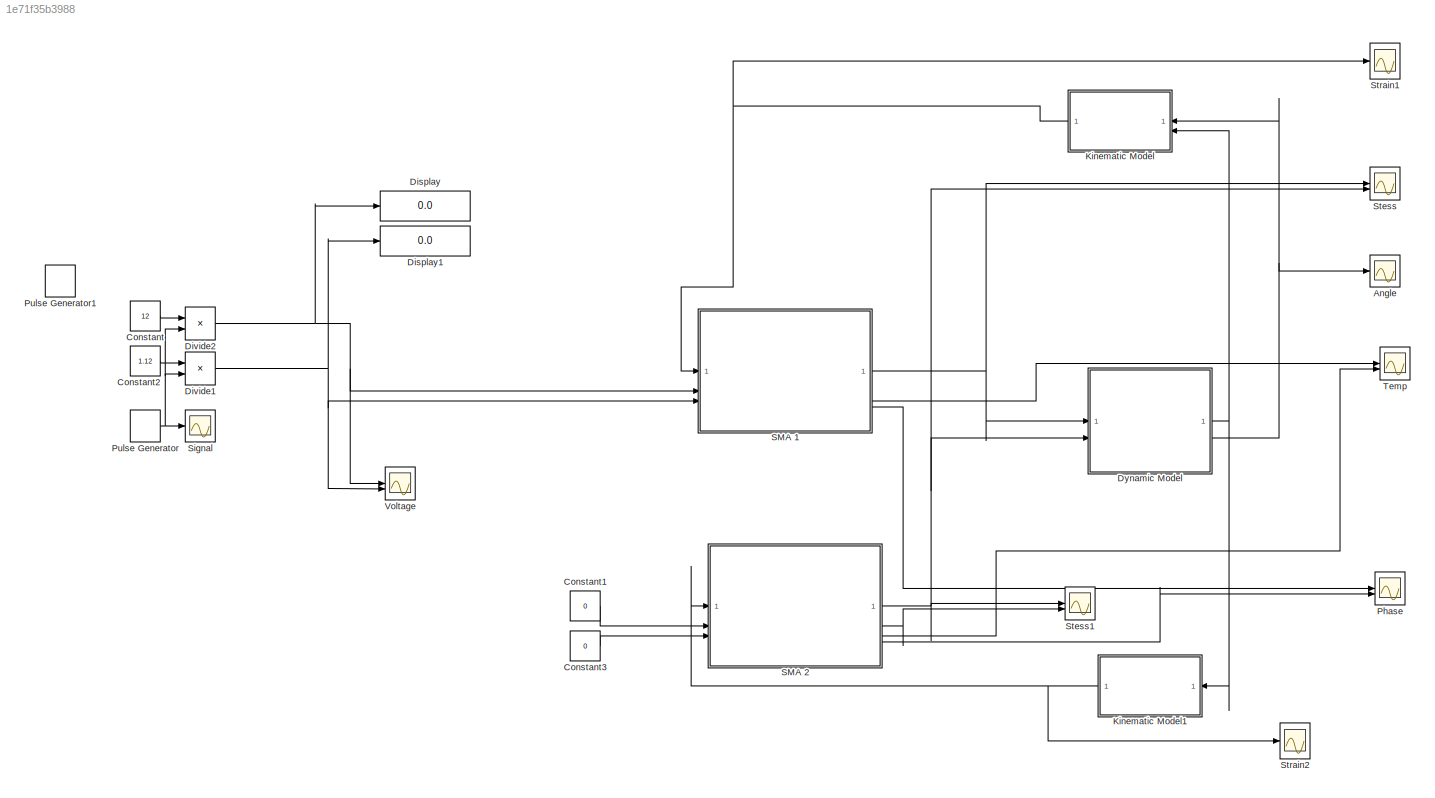
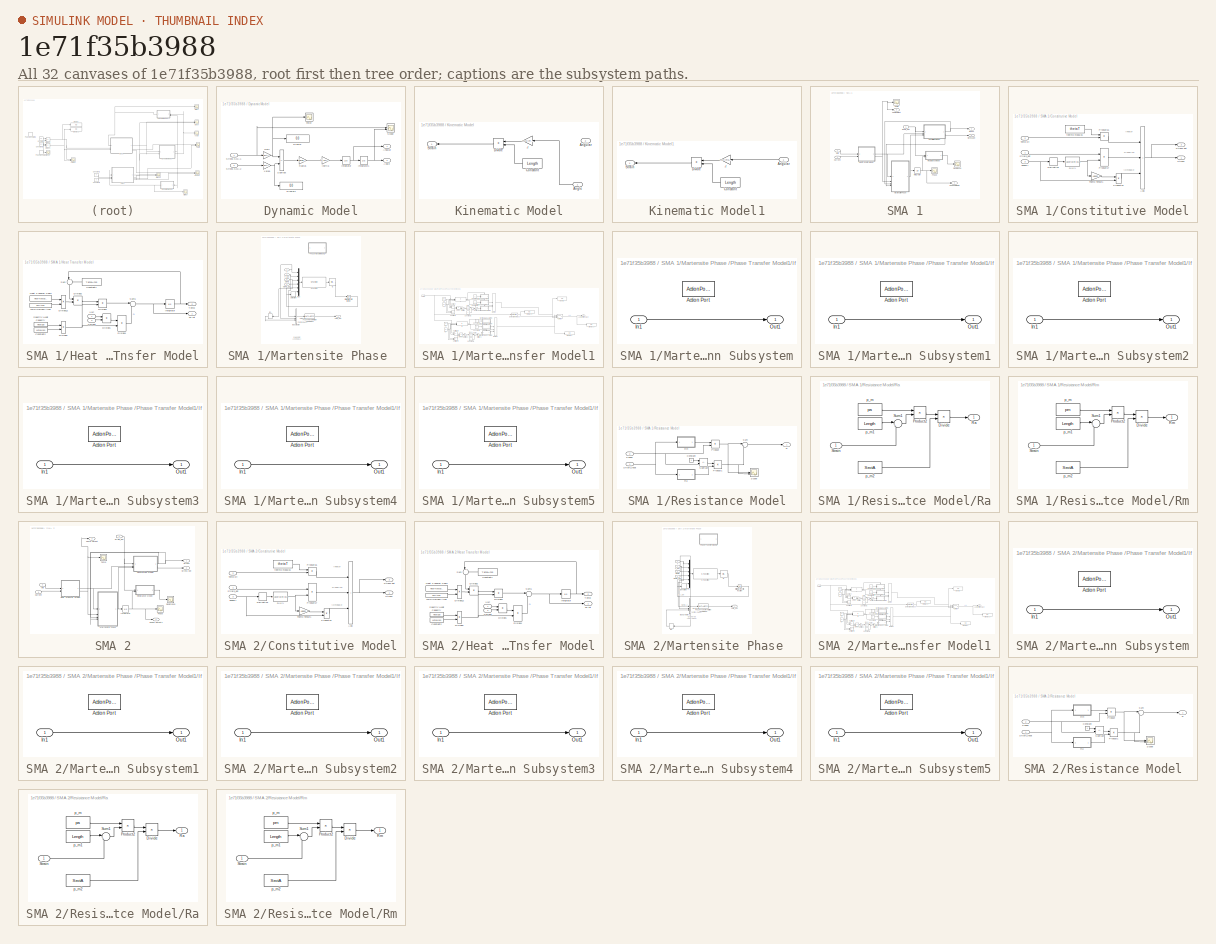
[diagram: thumbnail index - all 32 canvases of the model, root first then tree order]
MODEL slx_1e71f35b3988
KIND model
CONFIG AbsTol = auto
CONFIG EnableMultiTasking = on
CONFIG FixedStep = 0.00001
CONFIG MaxStep = auto
CONFIG MinStep = auto
CONFIG RelTol = 1e-5
CONFIG SampleTimeConstraint = Unconstrained
CONFIG SolverName = FixedStepAuto
CONFIG StartTime = 0
CONFIG StopTime = 2
BLOCK [Scope] Angle
  Floating = off
  NumInputPorts = 1
  ScopeSpecificationString = Simulink.scopes.TimeScopeBlockCfg('CurrentConfiguration', extmgr.ConfigurationSet(extmgr.Configuration('Core','General UI',true),extmgr.Configuration('Core','Source UI',true),extmgr.Configuration('Sources','WiredSimulink',true,'DataLoggingVariableName','ScopeData2'),extmgr.Configuration('Visuals','Time Domain',true,'SerializedDisplays',{struct('MinYLimReal','-1.00000','MaxYLimReal','1.00000','YLab...<+1455ch>
BLOCK [Constant] Constant
  SampleTime = 0.00001
  Value = 12
BLOCK [Constant] Constant1
  SampleTime = 0.00001
  Value = 0
BLOCK [Constant] Constant2
  SampleTime = 0.00001
  Value = 1.12
BLOCK [Constant] Constant3
  SampleTime = 0.00001
  Value = 0
BLOCK [Display] Display
  Decimation = 1
BLOCK [Display] Display1
  Decimation = 1
BLOCK [Product] Divide1
  Inputs = **
BLOCK [Product] Divide2
  Inputs = **
BLOCK [SubSystem] Dynamic Model
BLOCK [Outport] Dynamic Model/Angle
  Port = 2
BLOCK [Outport] Dynamic Model/Angular
BLOCK [Display] Dynamic Model/Display
  Decimation = 1
BLOCK [Display] Dynamic Model/Display1
  Decimation = 1
BLOCK [Scope] Dynamic Model/Force
  Floating = off
  NumInputPorts = 1
  ScopeSpecificationString = Simulink.scopes.TimeScopeBlockCfg('CurrentConfiguration', extmgr.ConfigurationSet(extmgr.Configuration('Core','General UI',true),extmgr.Configuration('Core','Source UI',true),extmgr.Configuration('Sources','WiredSimulink',true,'DataLoggingVariableName','ScopeData5'),extmgr.Configuration('Visuals','Time Domain',true,'SerializedDisplays',{struct('MinYLimReal','-2739215814538064231380670323802243072....<+1707ch>
BLOCK [Gain] Dynamic Model/Gain
  Gain = SectA
BLOCK [Gain] Dynamic Model/Inertia
  Gain = 1/Inertia
BLOCK [Integrator] Dynamic Model/Integrator
BLOCK [Integrator] Dynamic Model/Integrator1
BLOCK [Gain] Dynamic Model/Radius
  Gain = PullyRadius
BLOCK [Scope] Dynamic Model/Scope
  Floating = off
  NumInputPorts = 2
  ScopeSpecificationString = Simulink.scopes.TimeScopeBlockCfg('CurrentConfiguration', extmgr.ConfigurationSet(extmgr.Configuration('Core','General UI',true),extmgr.Configuration('Core','Source UI',true),extmgr.Configuration('Sources','WiredSimulink',true,'DataLoggingVariableName','ScopeData1'),extmgr.Configuration('Visuals','Time Domain',true,'SerializedDisplays',{struct('MinYLimReal','-46895597262371436084607754205736730624...<+2315ch>
BLOCK [Inport] Dynamic Model/Stress SMA1
BLOCK [Inport] Dynamic Model/Stress SMA2
  Port = 2
BLOCK [Sum] Dynamic Model/Subtract
  IconShape = rectangular
  Inputs = +-
BLOCK [Gain] Dynamic Model/Xarea
  Gain = SectA
  OutDataTypeStr = single
BLOCK [SubSystem] Kinematic Model
BLOCK [Gain] Kinematic Model/-r
  Gain = -PullyRadius
BLOCK [Inport] Kinematic Model/Angle
BLOCK [Inport] Kinematic Model/Angular
  Port = 2
BLOCK [Constant] Kinematic Model/Constant
  SampleTime = 0.00001
  Value = Length
BLOCK [Product] Kinematic Model/Divide
  Inputs = */
BLOCK [Outport] Kinematic Model/Strain
BLOCK [SubSystem] Kinematic Model1
BLOCK [Gain] Kinematic Model1/-r
  Gain = PullyRadius
BLOCK [Inport] Kinematic Model1/Angular
BLOCK [Constant] Kinematic Model1/Constant
  SampleTime = 0.00001
  Value = Length
BLOCK [Product] Kinematic Model1/Divide
  Inputs = */
BLOCK [Outport] Kinematic Model1/Strain
BLOCK [Scope] Phase
  Floating = off
  NumInputPorts = 2
  ScopeSpecificationString = Simulink.scopes.TimeScopeBlockCfg('CurrentConfiguration', extmgr.ConfigurationSet(extmgr.Configuration('Core','General UI',true),extmgr.Configuration('Core','Source UI',true),extmgr.Configuration('Sources','WiredSimulink',true,'DataLoggingVariableName','ScopeData2'),extmgr.Configuration('Visuals','Time Domain',true,'SerializedDisplays',{struct('MinYLimReal','0.9','MaxYLimReal','1.1','YLabelReal','...<+1423ch>
BLOCK [DiscretePulseGenerator] Pulse Generator
  Period = 40
  PhaseDelay = 0.25
  PulseType = Time based
  PulseWidth = 1.5
BLOCK [DiscretePulseGenerator] Pulse Generator1
  Amplitude = 0.5
  Period = 10
  PulseType = Time based
  PulseWidth = 5
BLOCK [SubSystem] SMA 1
BLOCK [SubSystem] SMA 1/Constitutive Model
BLOCK [Sum] SMA 1/Constitutive Model/Add
  IconShape = rectangular
  Inputs = +++
BLOCK [Fcn] SMA 1/Constitutive Model/D(Xi)
  Expr = Da+u*(Dm-Da)
BLOCK [Derivative] SMA 1/Constitutive Model/Derivative
BLOCK [Product] SMA 1/Constitutive Model/Product15
BLOCK [Product] SMA 1/Constitutive Model/Product16
BLOCK [Product] SMA 1/Constitutive Model/Product17
BLOCK [Inport] SMA 1/Constitutive Model/Strain_dot
BLOCK [Outport] SMA 1/Constitutive Model/Stress 
BLOCK [Outport] SMA 1/Constitutive Model/Stress dot
  Port = 2
BLOCK [Inport] SMA 1/Constitutive Model/Temp Dt
  Port = 2
BLOCK [Gain] SMA 1/Constitutive Model/Themo Tensor1
  Gain = -epsR
  NameLocation = top
  OutDataTypeStr = Inherit: Same as input
  ParamDataTypeStr = Inherit: Same as input
  SaturateOnIntegerOverflow = on
BLOCK [Inport] SMA 1/Constitutive Model/phase f
  Port = 3
BLOCK [Constant] SMA 1/Constitutive Model/thermo modulus
  SampleTime = 0.00001
  Value = thetaT
BLOCK [Inport] SMA 1/Current
  Port = 3
BLOCK [SubSystem] SMA 1/Heat Transfer Model
BLOCK [Constant] SMA 1/Heat Transfer Model/Constant1
  SampleTime = 0.00001
  Value = TempAmb
BLOCK [Constant] SMA 1/Heat Transfer Model/Constant2
  SampleTime = 0.00001
  Value = WireMass
BLOCK [Inport] SMA 1/Heat Transfer Model/Current
  Port = 2
BLOCK [Product] SMA 1/Heat Transfer Model/Divide1
  Inputs = **
BLOCK [Product] SMA 1/Heat Transfer Model/Divide12
  Inputs = **
BLOCK [Product] SMA 1/Heat Transfer Model/Divide2
  Inputs = **
BLOCK [Product] SMA 1/Heat Transfer Model/Divide3
  Inputs = */
BLOCK [Product] SMA 1/Heat Transfer Model/Divide4
  Inputs = */
BLOCK [Product] SMA 1/Heat Transfer Model/Divide9
  Inputs = **
BLOCK [Constant] SMA 1/Heat Transfer Model/Heat Transfer Coeff
  NameLocation = top
  SampleTime = 0.00001
  Value = HeatTransCoeff
BLOCK [Integrator] SMA 1/Heat Transfer Model/Integrator
  InitialCondition = TempAmb
BLOCK [Constant] SMA 1/Heat Transfer Model/Specific Heat Capacity
  NameLocation = top
  SampleTime = 0.00001
  Value = HeatCap
BLOCK [Sum] SMA 1/Heat Transfer Model/Sum
  Inputs = |+-
  NameLocation = left
BLOCK [Sum] SMA 1/Heat Transfer Model/Sum1
  Inputs = |-+
BLOCK [Outport] SMA 1/Heat Transfer Model/Temp
  Port = 2
BLOCK [Inport] SMA 1/Heat Transfer Model/Volt
  NameLocation = top
BLOCK [Constant] SMA 1/Heat Transfer Model/Wire Surface Area
  SampleTime = 0.00001
  Value = SurfArea
BLOCK [Outport] SMA 1/Heat Transfer Model/dT//dt
BLOCK [Integrator] SMA 1/Integrator
  InitialCondition = 1
BLOCK [SubSystem] SMA 1/Martensite Phase 
BLOCK [BusCreator] SMA 1/Martensite Phase /Bus Creator
  DialogController = Simulink.DDGSource_Bus
  DisplayOption = bar
  InheritFromInputs = on
  Inputs = 3
BLOCK [Derivative] SMA 1/Martensite Phase /Derivative
BLOCK [InitialCondition] SMA 1/Martensite Phase /IC
  Value = 0
BLOCK [InitialCondition] SMA 1/Martensite Phase /IC1
  Value = 0
BLOCK [Integrator] SMA 1/Martensite Phase /Initial martensitic fraction
  InitialCondition = 1
  LowerSaturationLimit = 0
  UpperSaturationLimit = 1
BLOCK [Mux] SMA 1/Martensite Phase /Mux
  DisplayOption = bar
  Inputs = 6
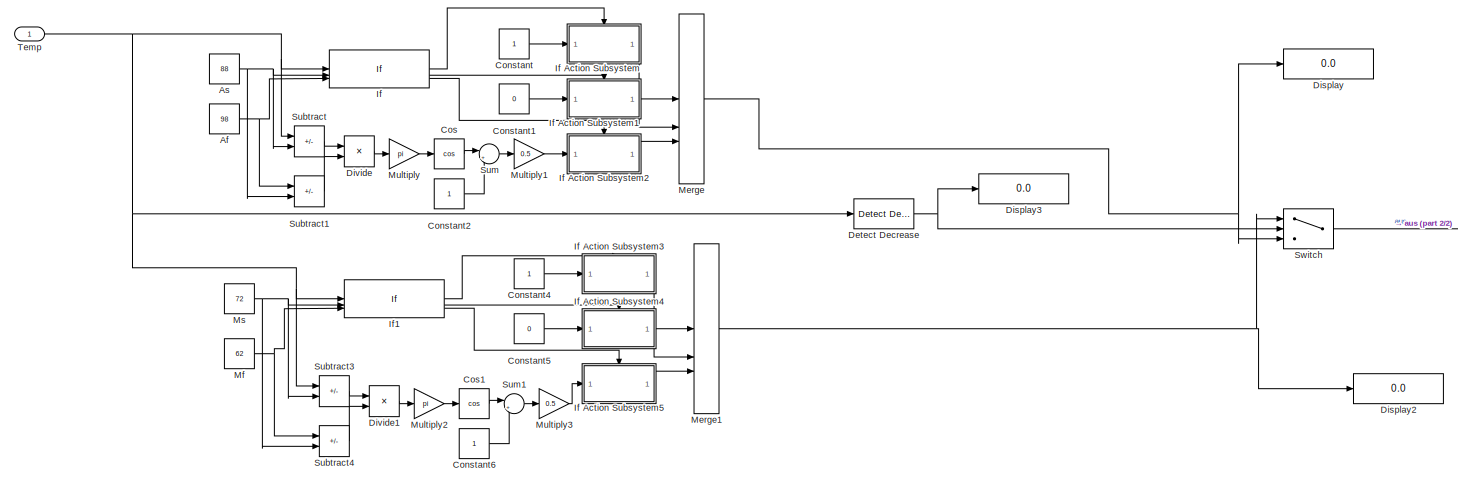
[diagram: SMA 1/Martensite Phase /Phase Transfer Model1 - part 1/2, most of the canvas]
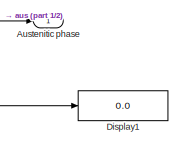
[diagram: SMA 1/Martensite Phase /Phase Transfer Model1 - part 2/2, middle right region]
BLOCK [SubSystem] SMA 1/Martensite Phase /Phase Transfer Model1
BLOCK [Constant] SMA 1/Martensite Phase /Phase Transfer Model1/Af
  Value = 98
BLOCK [Constant] SMA 1/Martensite Phase /Phase Transfer Model1/As
  Value = 88
BLOCK [Outport] SMA 1/Martensite Phase /Phase Transfer Model1/Austenitic phase 
BLOCK [Constant] SMA 1/Martensite Phase /Phase Transfer Model1/Constant
BLOCK [Constant] SMA 1/Martensite Phase /Phase Transfer Model1/Constant1
  Value = 0
BLOCK [Constant] SMA 1/Martensite Phase /Phase Transfer Model1/Constant2
BLOCK [Constant] SMA 1/Martensite Phase /Phase Transfer Model1/Constant4
BLOCK [Constant] SMA 1/Martensite Phase /Phase Transfer Model1/Constant5
  Value = 0
BLOCK [Constant] SMA 1/Martensite Phase /Phase Transfer Model1/Constant6
BLOCK [Trigonometry] SMA 1/Martensite Phase /Phase Transfer Model1/Cos
  Operator = cos
BLOCK [Trigonometry] SMA 1/Martensite Phase /Phase Transfer Model1/Cos1
  Operator = cos
BLOCK [Reference] SMA 1/Martensite Phase /Phase Transfer Model1/Detect Decrease  REF=simulink/Logic and Bit
Operations/Detect
Decrease
  SourceBlock = simulink/Logic and Bit\nOperations/Detect\nDecrease
  SourceType = Detect Decrease
BLOCK [Display] SMA 1/Martensite Phase /Phase Transfer Model1/Display
  Decimation = 1
BLOCK [Display] SMA 1/Martensite Phase /Phase Transfer Model1/Display1
  Decimation = 1
BLOCK [Display] SMA 1/Martensite Phase /Phase Transfer Model1/Display2
  Decimation = 1
BLOCK [Display] SMA 1/Martensite Phase /Phase Transfer Model1/Display3
  Decimation = 1
BLOCK [Product] SMA 1/Martensite Phase /Phase Transfer Model1/Divide
  Inputs = */
BLOCK [Product] SMA 1/Martensite Phase /Phase Transfer Model1/Divide1
  Inputs = */
BLOCK [If] SMA 1/Martensite Phase /Phase Transfer Model1/If
  ElseIfExpressions = u1> u3
  IfExpression = u1 < u2
  NumInputs = 3
BLOCK [SubSystem] SMA 1/Martensite Phase /Phase Transfer Model1/If Action Subsystem
  TreatAsAtomicUnit = on
BLOCK [ActionPort] SMA 1/Martensite Phase /Phase Transfer Model1/If Action Subsystem/Action Port
  ActionPortLabel = if(u1 < u2)
BLOCK [Inport] SMA 1/Martensite Phase /Phase Transfer Model1/If Action Subsystem/In1
BLOCK [Outport] SMA 1/Martensite Phase /Phase Transfer Model1/If Action Subsystem/Out1
BLOCK [SubSystem] SMA 1/Martensite Phase /Phase Transfer Model1/If Action Subsystem1
  TreatAsAtomicUnit = on
BLOCK [ActionPort] SMA 1/Martensite Phase /Phase Transfer Model1/If Action Subsystem1/Action Port
  ActionPortLabel = elseif(u1> u3)
BLOCK [Inport] SMA 1/Martensite Phase /Phase Transfer Model1/If Action Subsystem1/In1
BLOCK [Outport] SMA 1/Martensite Phase /Phase Transfer Model1/If Action Subsystem1/Out1
BLOCK [SubSystem] SMA 1/Martensite Phase /Phase Transfer Model1/If Action Subsystem2
  TreatAsAtomicUnit = on
BLOCK [ActionPort] SMA 1/Martensite Phase /Phase Transfer Model1/If Action Subsystem2/Action Port
  ActionPortLabel = else
BLOCK [Inport] SMA 1/Martensite Phase /Phase Transfer Model1/If Action Subsystem2/In1
BLOCK [Outport] SMA 1/Martensite Phase /Phase Transfer Model1/If Action Subsystem2/Out1
BLOCK [SubSystem] SMA 1/Martensite Phase /Phase Transfer Model1/If Action Subsystem3
  TreatAsAtomicUnit = on
BLOCK [ActionPort] SMA 1/Martensite Phase /Phase Transfer Model1/If Action Subsystem3/Action Port
  ActionPortLabel = if(u1 > u2)
BLOCK [Inport] SMA 1/Martensite Phase /Phase Transfer Model1/If Action Subsystem3/In1
BLOCK [Outport] SMA 1/Martensite Phase /Phase Transfer Model1/If Action Subsystem3/Out1
BLOCK [SubSystem] SMA 1/Martensite Phase /Phase Transfer Model1/If Action Subsystem4
  TreatAsAtomicUnit = on
BLOCK [ActionPort] SMA 1/Martensite Phase /Phase Transfer Model1/If Action Subsystem4/Action Port
  ActionPortLabel = elseif(u1< u3)
BLOCK [Inport] SMA 1/Martensite Phase /Phase Transfer Model1/If Action Subsystem4/In1
BLOCK [Outport] SMA 1/Martensite Phase /Phase Transfer Model1/If Action Subsystem4/Out1
BLOCK [SubSystem] SMA 1/Martensite Phase /Phase Transfer Model1/If Action Subsystem5
  TreatAsAtomicUnit = on
BLOCK [ActionPort] SMA 1/Martensite Phase /Phase Transfer Model1/If Action Subsystem5/Action Port
  ActionPortLabel = else
BLOCK [Inport] SMA 1/Martensite Phase /Phase Transfer Model1/If Action Subsystem5/In1
BLOCK [Outport] SMA 1/Martensite Phase /Phase Transfer Model1/If Action Subsystem5/Out1
BLOCK [If] SMA 1/Martensite Phase /Phase Transfer Model1/If1
  ElseIfExpressions = u1< u3
  IfExpression = u1 > u2
  NumInputs = 3
BLOCK [Merge] SMA 1/Martensite Phase /Phase Transfer Model1/Merge
  Inputs = 3
BLOCK [Merge] SMA 1/Martensite Phase /Phase Transfer Model1/Merge1
  Inputs = 3
BLOCK [Constant] SMA 1/Martensite Phase /Phase Transfer Model1/Mf
  Value = 62
BLOCK [Constant] SMA 1/Martensite Phase /Phase Transfer Model1/Ms
  Value = 72
BLOCK [Gain] SMA 1/Martensite Phase /Phase Transfer Model1/Multiply
  Gain = pi
BLOCK [Gain] SMA 1/Martensite Phase /Phase Transfer Model1/Multiply1
  Gain = 0.5
BLOCK [Gain] SMA 1/Martensite Phase /Phase Transfer Model1/Multiply2
  Gain = pi
BLOCK [Gain] SMA 1/Martensite Phase /Phase Transfer Model1/Multiply3
  Gain = 0.5
BLOCK [Sum] SMA 1/Martensite Phase /Phase Transfer Model1/Subtract
  IconShape = rectangular
  Inputs = +-
BLOCK [Sum] SMA 1/Martensite Phase /Phase Transfer Model1/Subtract1
  IconShape = rectangular
  Inputs = +-
BLOCK [Sum] SMA 1/Martensite Phase /Phase Transfer Model1/Subtract3
  IconShape = rectangular
  Inputs = +-
BLOCK [Sum] SMA 1/Martensite Phase /Phase Transfer Model1/Subtract4
  IconShape = rectangular
  Inputs = +-
BLOCK [Sum] SMA 1/Martensite Phase /Phase Transfer Model1/Sum
  Inputs = |++
BLOCK [Sum] SMA 1/Martensite Phase /Phase Transfer Model1/Sum1
  Inputs = |++
BLOCK [Switch] SMA 1/Martensite Phase /Phase Transfer Model1/Switch
  Criteria = u2 > Threshold
  InputSameDT = off
  SaturateOnIntegerOverflow = off
  Threshold = 0.5
BLOCK [Inport] SMA 1/Martensite Phase /Phase Transfer Model1/Temp
BLOCK [MATLABFcn] SMA 1/Martensite Phase /Phase Transformation Model SMA 1
  MATLABFcn = SMA1_Martensite_Fraction
  OutputDimensions = 1
BLOCK [S-Function] SMA 1/Martensite Phase /S-Function
  EnableBusSupport = off
  FunctionName = Phase_Transformation_Model
  SFcnIsStateOwnerBlock = off
  SFunctionDeploymentMode = off
BLOCK [Inport] SMA 1/Martensite Phase /T
  Port = 2
BLOCK [Inport] SMA 1/Martensite Phase /T_dot
BLOCK [Inport] SMA 1/Martensite Phase /sigma
  Port = 3
BLOCK [Inport] SMA 1/Martensite Phase /sigma_dot
  Port = 4
BLOCK [Outport] SMA 1/Martensite Phase /zeta_dot
BLOCK [Scope] SMA 1/Phase
  Floating = off
  NumInputPorts = 1
  ScopeSpecificationString = Simulink.scopes.TimeScopeBlockCfg('CurrentConfiguration', extmgr.ConfigurationSet(extmgr.Configuration('Core','General UI',true),extmgr.Configuration('Core','Source UI',true),extmgr.Configuration('Sources','WiredSimulink',true,'DataLoggingVariableName','ScopeData3'),extmgr.Configuration('Visuals','Time Domain',true,'SerializedDisplays',{struct('MinYLimReal','0.9','MaxYLimReal','1.1','YLabelReal','...<+1416ch>
BLOCK [Outport] SMA 1/Phase Output1
  Port = 4
BLOCK [Scope] SMA 1/Resistance
  Floating = off
  NumInputPorts = 1
  ScopeSpecificationString = Simulink.scopes.TimeScopeBlockCfg('CurrentConfiguration', extmgr.ConfigurationSet(extmgr.Configuration('Core','General UI',true),extmgr.Configuration('Core','Source UI',true),extmgr.Configuration('Sources','WiredSimulink',true,'DataLoggingVariableName','ScopeData4'),extmgr.Configuration('Visuals','Time Domain',true,'SerializedDisplays',{struct('MinYLimReal','2.7324','MaxYLimReal','22.7324','YLabel...<+1450ch>
BLOCK [SubSystem] SMA 1/Resistance Model
BLOCK [Constant] SMA 1/Resistance Model/Constant
BLOCK [Inport] SMA 1/Resistance Model/Phase
  Port = 2
BLOCK [Product] SMA 1/Resistance Model/Product
BLOCK [Product] SMA 1/Resistance Model/Product1
BLOCK [Outport] SMA 1/Resistance Model/R
BLOCK [SubSystem] SMA 1/Resistance Model/Ra
BLOCK [Product] SMA 1/Resistance Model/Ra/Divide
  Inputs = */
BLOCK [Product] SMA 1/Resistance Model/Ra/Product2
BLOCK [Outport] SMA 1/Resistance Model/Ra/Ra
BLOCK [Inport] SMA 1/Resistance Model/Ra/Strain
BLOCK [Sum] SMA 1/Resistance Model/Ra/Sum1
  Inputs = |++
BLOCK [Constant] SMA 1/Resistance Model/Ra/p_m
  NameLocation = top
  Value = pa
BLOCK [Constant] SMA 1/Resistance Model/Ra/p_m1
  Value = Length
BLOCK [Constant] SMA 1/Resistance Model/Ra/p_m2
  NameLocation = top
  Value = SectA
BLOCK [SubSystem] SMA 1/Resistance Model/Rm
BLOCK [Product] SMA 1/Resistance Model/Rm/Divide
  Inputs = */
BLOCK [Product] SMA 1/Resistance Model/Rm/Product2
BLOCK [Outport] SMA 1/Resistance Model/Rm/Rm
BLOCK [Inport] SMA 1/Resistance Model/Rm/Strain
BLOCK [Sum] SMA 1/Resistance Model/Rm/Sum1
  Inputs = |++
BLOCK [Constant] SMA 1/Resistance Model/Rm/p_m
  NameLocation = top
  Value = pm
BLOCK [Constant] SMA 1/Resistance Model/Rm/p_m1
  Value = Length
BLOCK [Constant] SMA 1/Resistance Model/Rm/p_m2
  NameLocation = top
  Value = SectA
BLOCK [Scope] SMA 1/Resistance Model/Scope
  Floating = off
  NumInputPorts = 2
  ScopeSpecificationString = Simulink.scopes.TimeScopeBlockCfg('CurrentConfiguration', extmgr.ConfigurationSet(extmgr.Configuration('Core','General UI',true),extmgr.Configuration('Core','Source UI',true),extmgr.Configuration('Sources','WiredSimulink',true,'DataLoggingVariableName','ScopeData2'),extmgr.Configuration('Visuals','Time Domain',true,'SerializedDisplays',{struct('MinYLimReal','-56487164468184360864929399239509803008...<+1704ch>
BLOCK [Inport] SMA 1/Resistance Model/Strain_Input
BLOCK [Sum] SMA 1/Resistance Model/Subtract
  IconShape = rectangular
  Inputs = +-
BLOCK [Sum] SMA 1/Resistance Model/Sum
  Inputs = |++
BLOCK [Inport] SMA 1/Strain_dot
BLOCK [Outport] SMA 1/Stress 
BLOCK [Outport] SMA 1/Stress dot
  Port = 2
BLOCK [Scope] SMA 1/Temp
  Floating = off
  NumInputPorts = 1
  ScopeSpecificationString = Simulink.scopes.TimeScopeBlockCfg('CurrentConfiguration', extmgr.ConfigurationSet(extmgr.Configuration('Core','General UI',true),extmgr.Configuration('Core','Source UI',true),extmgr.Configuration('Sources','WiredSimulink',true,'DataLoggingVariableName','ScopeData1'),extmgr.Configuration('Visuals','Time Domain',true,'SerializedDisplays',{struct('MinYLimReal','14.89506','MaxYLimReal','115.94443','YL...<+1445ch>
BLOCK [Outport] SMA 1/Temp Output
  Port = 3
BLOCK [Inport] SMA 1/Volt
  Port = 2
BLOCK [SubSystem] SMA 2
BLOCK [SubSystem] SMA 2/Constitutive Model
BLOCK [Sum] SMA 2/Constitutive Model/Add
  IconShape = rectangular
  Inputs = +++
BLOCK [Fcn] SMA 2/Constitutive Model/D(Xi)
  Expr = Da+u*(Dm-Da)
BLOCK [Derivative] SMA 2/Constitutive Model/Derivative
BLOCK [Product] SMA 2/Constitutive Model/Product15
BLOCK [Product] SMA 2/Constitutive Model/Product16
BLOCK [Product] SMA 2/Constitutive Model/Product17
BLOCK [Inport] SMA 2/Constitutive Model/Strain_dot
BLOCK [Outport] SMA 2/Constitutive Model/Stress 
BLOCK [Outport] SMA 2/Constitutive Model/Stress dot
  Port = 2
BLOCK [Inport] SMA 2/Constitutive Model/Temp Dt
  Port = 2
BLOCK [Gain] SMA 2/Constitutive Model/Themo Tensor1
  Gain = -epsR
  NameLocation = top
  OutDataTypeStr = Inherit: Same as input
  ParamDataTypeStr = Inherit: Same as input
  SaturateOnIntegerOverflow = on
BLOCK [Inport] SMA 2/Constitutive Model/phase f
  Port = 3
BLOCK [Constant] SMA 2/Constitutive Model/thermo modulus
  SampleTime = 0.00001
  Value = thetaT
BLOCK [Inport] SMA 2/Current
  Port = 3
BLOCK [SubSystem] SMA 2/Heat Transfer Model
BLOCK [Constant] SMA 2/Heat Transfer Model/Constant1
  SampleTime = 0.00001
  Value = TempAmb
BLOCK [Constant] SMA 2/Heat Transfer Model/Constant2
  SampleTime = 0.00001
  Value = WireMass
BLOCK [Inport] SMA 2/Heat Transfer Model/Current
  Port = 2
BLOCK [Product] SMA 2/Heat Transfer Model/Divide1
  Inputs = **
BLOCK [Product] SMA 2/Heat Transfer Model/Divide12
  Inputs = **
BLOCK [Product] SMA 2/Heat Transfer Model/Divide2
  Inputs = **
BLOCK [Product] SMA 2/Heat Transfer Model/Divide3
  Inputs = */
BLOCK [Product] SMA 2/Heat Transfer Model/Divide4
  Inputs = */
BLOCK [Product] SMA 2/Heat Transfer Model/Divide9
  Inputs = **
BLOCK [Constant] SMA 2/Heat Transfer Model/Heat Transfer Coeff
  NameLocation = top
  SampleTime = 0.00001
  Value = HeatTransCoeff
BLOCK [Integrator] SMA 2/Heat Transfer Model/Integrator
  InitialCondition = TempAmb
BLOCK [Constant] SMA 2/Heat Transfer Model/Specific Heat Capacity
  NameLocation = top
  SampleTime = 0.00001
  Value = HeatCap
BLOCK [Sum] SMA 2/Heat Transfer Model/Sum
  Inputs = |+-
  NameLocation = left
BLOCK [Sum] SMA 2/Heat Transfer Model/Sum1
  Inputs = |-+
BLOCK [Outport] SMA 2/Heat Transfer Model/Temp
  Port = 2
BLOCK [Inport] SMA 2/Heat Transfer Model/Volt
  NameLocation = top
BLOCK [Constant] SMA 2/Heat Transfer Model/Wire Surface Area
  SampleTime = 0.00001
  Value = SurfArea
BLOCK [Outport] SMA 2/Heat Transfer Model/dT//dt
BLOCK [Integrator] SMA 2/Integrator
  InitialCondition = 1
BLOCK [SubSystem] SMA 2/Martensite Phase 
BLOCK [BusCreator] SMA 2/Martensite Phase /Bus Creator2
  DialogController = Simulink.DDGSource_Bus
  DisplayOption = bar
  InheritFromInputs = on
  Inputs = 3
BLOCK [Derivative] SMA 2/Martensite Phase /Derivative
BLOCK [InitialCondition] SMA 2/Martensite Phase /IC
  Value = 0
BLOCK [InitialCondition] SMA 2/Martensite Phase /IC2
  Value = 0
BLOCK [Integrator] SMA 2/Martensite Phase /Initial martensitic fraction
  InitialCondition = 1
  LowerSaturationLimit = 0
  UpperSaturationLimit = 1
BLOCK [Mux] SMA 2/Martensite Phase /Mux
  DisplayOption = bar
  Inputs = 6
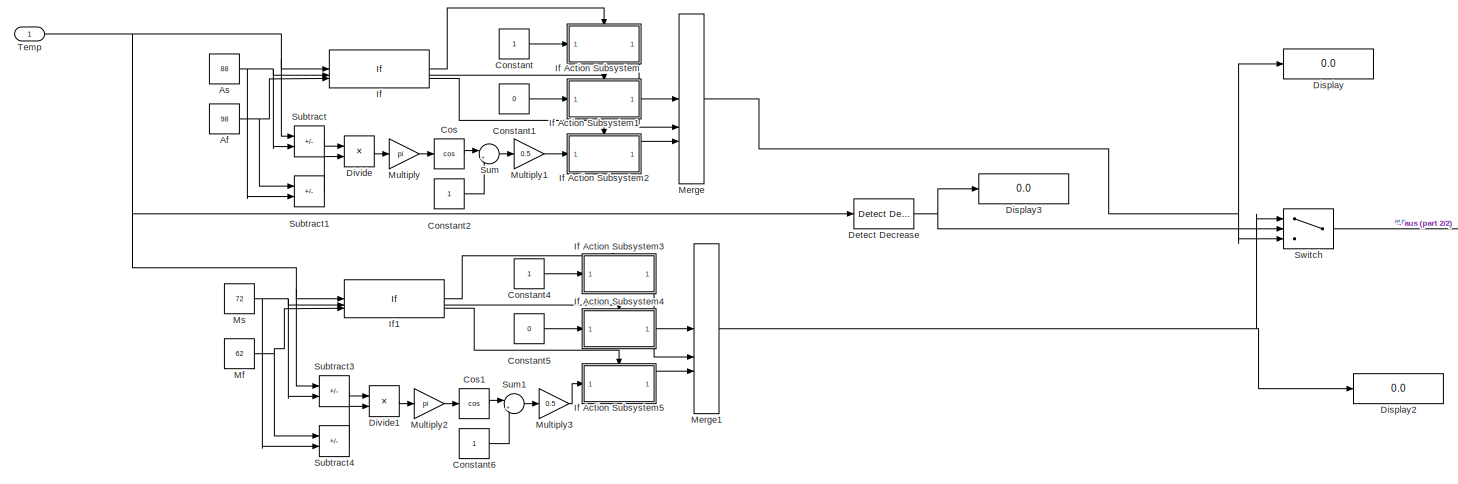
[diagram: SMA 2/Martensite Phase /Phase Transfer Model1 - part 1/2, most of the canvas]
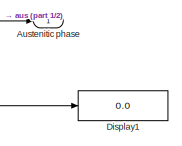
[diagram: SMA 2/Martensite Phase /Phase Transfer Model1 - part 2/2, middle right region]
BLOCK [SubSystem] SMA 2/Martensite Phase /Phase Transfer Model1
BLOCK [Constant] SMA 2/Martensite Phase /Phase Transfer Model1/Af
  Value = 98
BLOCK [Constant] SMA 2/Martensite Phase /Phase Transfer Model1/As
  Value = 88
BLOCK [Outport] SMA 2/Martensite Phase /Phase Transfer Model1/Austenitic phase 
BLOCK [Constant] SMA 2/Martensite Phase /Phase Transfer Model1/Constant
BLOCK [Constant] SMA 2/Martensite Phase /Phase Transfer Model1/Constant1
  Value = 0
BLOCK [Constant] SMA 2/Martensite Phase /Phase Transfer Model1/Constant2
BLOCK [Constant] SMA 2/Martensite Phase /Phase Transfer Model1/Constant4
BLOCK [Constant] SMA 2/Martensite Phase /Phase Transfer Model1/Constant5
  Value = 0
BLOCK [Constant] SMA 2/Martensite Phase /Phase Transfer Model1/Constant6
BLOCK [Trigonometry] SMA 2/Martensite Phase /Phase Transfer Model1/Cos
  Operator = cos
BLOCK [Trigonometry] SMA 2/Martensite Phase /Phase Transfer Model1/Cos1
  Operator = cos
BLOCK [Reference] SMA 2/Martensite Phase /Phase Transfer Model1/Detect Decrease  REF=simulink/Logic and Bit
Operations/Detect
Decrease
  SourceBlock = simulink/Logic and Bit\nOperations/Detect\nDecrease
  SourceType = Detect Decrease
BLOCK [Display] SMA 2/Martensite Phase /Phase Transfer Model1/Display
  Decimation = 1
BLOCK [Display] SMA 2/Martensite Phase /Phase Transfer Model1/Display1
  Decimation = 1
BLOCK [Display] SMA 2/Martensite Phase /Phase Transfer Model1/Display2
  Decimation = 1
BLOCK [Display] SMA 2/Martensite Phase /Phase Transfer Model1/Display3
  Decimation = 1
BLOCK [Product] SMA 2/Martensite Phase /Phase Transfer Model1/Divide
  Inputs = */
BLOCK [Product] SMA 2/Martensite Phase /Phase Transfer Model1/Divide1
  Inputs = */
BLOCK [If] SMA 2/Martensite Phase /Phase Transfer Model1/If
  ElseIfExpressions = u1> u3
  IfExpression = u1 < u2
  NumInputs = 3
BLOCK [SubSystem] SMA 2/Martensite Phase /Phase Transfer Model1/If Action Subsystem
  TreatAsAtomicUnit = on
BLOCK [ActionPort] SMA 2/Martensite Phase /Phase Transfer Model1/If Action Subsystem/Action Port
  ActionPortLabel = if(u1 < u2)
BLOCK [Inport] SMA 2/Martensite Phase /Phase Transfer Model1/If Action Subsystem/In1
BLOCK [Outport] SMA 2/Martensite Phase /Phase Transfer Model1/If Action Subsystem/Out1
BLOCK [SubSystem] SMA 2/Martensite Phase /Phase Transfer Model1/If Action Subsystem1
  TreatAsAtomicUnit = on
BLOCK [ActionPort] SMA 2/Martensite Phase /Phase Transfer Model1/If Action Subsystem1/Action Port
  ActionPortLabel = elseif(u1> u3)
BLOCK [Inport] SMA 2/Martensite Phase /Phase Transfer Model1/If Action Subsystem1/In1
BLOCK [Outport] SMA 2/Martensite Phase /Phase Transfer Model1/If Action Subsystem1/Out1
BLOCK [SubSystem] SMA 2/Martensite Phase /Phase Transfer Model1/If Action Subsystem2
  TreatAsAtomicUnit = on
BLOCK [ActionPort] SMA 2/Martensite Phase /Phase Transfer Model1/If Action Subsystem2/Action Port
  ActionPortLabel = else
BLOCK [Inport] SMA 2/Martensite Phase /Phase Transfer Model1/If Action Subsystem2/In1
BLOCK [Outport] SMA 2/Martensite Phase /Phase Transfer Model1/If Action Subsystem2/Out1
BLOCK [SubSystem] SMA 2/Martensite Phase /Phase Transfer Model1/If Action Subsystem3
  TreatAsAtomicUnit = on
BLOCK [ActionPort] SMA 2/Martensite Phase /Phase Transfer Model1/If Action Subsystem3/Action Port
  ActionPortLabel = if(u1 > u2)
BLOCK [Inport] SMA 2/Martensite Phase /Phase Transfer Model1/If Action Subsystem3/In1
BLOCK [Outport] SMA 2/Martensite Phase /Phase Transfer Model1/If Action Subsystem3/Out1
BLOCK [SubSystem] SMA 2/Martensite Phase /Phase Transfer Model1/If Action Subsystem4
  TreatAsAtomicUnit = on
BLOCK [ActionPort] SMA 2/Martensite Phase /Phase Transfer Model1/If Action Subsystem4/Action Port
  ActionPortLabel = elseif(u1< u3)
BLOCK [Inport] SMA 2/Martensite Phase /Phase Transfer Model1/If Action Subsystem4/In1
BLOCK [Outport] SMA 2/Martensite Phase /Phase Transfer Model1/If Action Subsystem4/Out1
BLOCK [SubSystem] SMA 2/Martensite Phase /Phase Transfer Model1/If Action Subsystem5
  TreatAsAtomicUnit = on
BLOCK [ActionPort] SMA 2/Martensite Phase /Phase Transfer Model1/If Action Subsystem5/Action Port
  ActionPortLabel = else
BLOCK [Inport] SMA 2/Martensite Phase /Phase Transfer Model1/If Action Subsystem5/In1
BLOCK [Outport] SMA 2/Martensite Phase /Phase Transfer Model1/If Action Subsystem5/Out1
BLOCK [If] SMA 2/Martensite Phase /Phase Transfer Model1/If1
  ElseIfExpressions = u1< u3
  IfExpression = u1 > u2
  NumInputs = 3
BLOCK [Merge] SMA 2/Martensite Phase /Phase Transfer Model1/Merge
  Inputs = 3
BLOCK [Merge] SMA 2/Martensite Phase /Phase Transfer Model1/Merge1
  Inputs = 3
BLOCK [Constant] SMA 2/Martensite Phase /Phase Transfer Model1/Mf
  Value = 62
BLOCK [Constant] SMA 2/Martensite Phase /Phase Transfer Model1/Ms
  Value = 72
BLOCK [Gain] SMA 2/Martensite Phase /Phase Transfer Model1/Multiply
  Gain = pi
BLOCK [Gain] SMA 2/Martensite Phase /Phase Transfer Model1/Multiply1
  Gain = 0.5
BLOCK [Gain] SMA 2/Martensite Phase /Phase Transfer Model1/Multiply2
  Gain = pi
BLOCK [Gain] SMA 2/Martensite Phase /Phase Transfer Model1/Multiply3
  Gain = 0.5
BLOCK [Sum] SMA 2/Martensite Phase /Phase Transfer Model1/Subtract
  IconShape = rectangular
  Inputs = +-
BLOCK [Sum] SMA 2/Martensite Phase /Phase Transfer Model1/Subtract1
  IconShape = rectangular
  Inputs = +-
BLOCK [Sum] SMA 2/Martensite Phase /Phase Transfer Model1/Subtract3
  IconShape = rectangular
  Inputs = +-
BLOCK [Sum] SMA 2/Martensite Phase /Phase Transfer Model1/Subtract4
  IconShape = rectangular
  Inputs = +-
BLOCK [Sum] SMA 2/Martensite Phase /Phase Transfer Model1/Sum
  Inputs = |++
BLOCK [Sum] SMA 2/Martensite Phase /Phase Transfer Model1/Sum1
  Inputs = |++
BLOCK [Switch] SMA 2/Martensite Phase /Phase Transfer Model1/Switch
  Criteria = u2 > Threshold
  InputSameDT = off
  SaturateOnIntegerOverflow = off
  Threshold = 0.5
BLOCK [Inport] SMA 2/Martensite Phase /Phase Transfer Model1/Temp
BLOCK [MATLABFcn] SMA 2/Martensite Phase /Phase Transformation Model SMA 2
  MATLABFcn = SMA2_Martensite_Fraction
  OutputDimensions = 1
BLOCK [S-Function] SMA 2/Martensite Phase /S-Function
  EnableBusSupport = off
  FunctionName = Phase_Transformation_Model
  SFcnIsStateOwnerBlock = off
  SFunctionDeploymentMode = off
BLOCK [Inport] SMA 2/Martensite Phase /T
  Port = 2
BLOCK [Inport] SMA 2/Martensite Phase /T_dot
BLOCK [Inport] SMA 2/Martensite Phase /sigma
  Port = 3
BLOCK [Inport] SMA 2/Martensite Phase /sigma_dot
  Port = 4
BLOCK [Outport] SMA 2/Martensite Phase /zeta_dot
BLOCK [Scope] SMA 2/Phase
  Floating = off
  NumInputPorts = 1
  ScopeSpecificationString = Simulink.scopes.TimeScopeBlockCfg('CurrentConfiguration', extmgr.ConfigurationSet(extmgr.Configuration('Core','General UI',true),extmgr.Configuration('Core','Source UI',true),extmgr.Configuration('Sources','WiredSimulink',true,'DataLoggingVariableName','ScopeData3'),extmgr.Configuration('Visuals','Time Domain',true,'SerializedDisplays',{struct('MinYLimReal','0.9','MaxYLimReal','1.1','YLabelReal','...<+1416ch>
BLOCK [Outport] SMA 2/Phase Output1
  Port = 4
BLOCK [Scope] SMA 2/Resistance
  Floating = off
  NumInputPorts = 1
  ScopeSpecificationString = Simulink.scopes.TimeScopeBlockCfg('CurrentConfiguration', extmgr.ConfigurationSet(extmgr.Configuration('Core','General UI',true),extmgr.Configuration('Core','Source UI',true),extmgr.Configuration('Sources','WiredSimulink',true,'DataLoggingVariableName','ScopeData4'),extmgr.Configuration('Visuals','Time Domain',true,'SerializedDisplays',{struct('MinYLimReal','2.7324','MaxYLimReal','22.7324','YLabel...<+1450ch>
BLOCK [SubSystem] SMA 2/Resistance Model
BLOCK [Constant] SMA 2/Resistance Model/Constant
BLOCK [Inport] SMA 2/Resistance Model/Phase
  Port = 2
BLOCK [Product] SMA 2/Resistance Model/Product
BLOCK [Product] SMA 2/Resistance Model/Product1
BLOCK [Outport] SMA 2/Resistance Model/R
BLOCK [SubSystem] SMA 2/Resistance Model/Ra
BLOCK [Product] SMA 2/Resistance Model/Ra/Divide
  Inputs = */
BLOCK [Product] SMA 2/Resistance Model/Ra/Product2
BLOCK [Outport] SMA 2/Resistance Model/Ra/Ra
BLOCK [Inport] SMA 2/Resistance Model/Ra/Strain
BLOCK [Sum] SMA 2/Resistance Model/Ra/Sum1
  Inputs = |++
BLOCK [Constant] SMA 2/Resistance Model/Ra/p_m
  NameLocation = top
  Value = pa
BLOCK [Constant] SMA 2/Resistance Model/Ra/p_m1
  Value = Length
BLOCK [Constant] SMA 2/Resistance Model/Ra/p_m2
  NameLocation = top
  Value = SectA
BLOCK [SubSystem] SMA 2/Resistance Model/Rm
BLOCK [Product] SMA 2/Resistance Model/Rm/Divide
  Inputs = */
BLOCK [Product] SMA 2/Resistance Model/Rm/Product2
BLOCK [Outport] SMA 2/Resistance Model/Rm/Rm
BLOCK [Inport] SMA 2/Resistance Model/Rm/Strain
BLOCK [Sum] SMA 2/Resistance Model/Rm/Sum1
  Inputs = |++
BLOCK [Constant] SMA 2/Resistance Model/Rm/p_m
  NameLocation = top
  Value = pm
BLOCK [Constant] SMA 2/Resistance Model/Rm/p_m1
  Value = Length
BLOCK [Constant] SMA 2/Resistance Model/Rm/p_m2
  NameLocation = top
  Value = SectA
BLOCK [Scope] SMA 2/Resistance Model/Scope
  Floating = off
  NumInputPorts = 2
  ScopeSpecificationString = Simulink.scopes.TimeScopeBlockCfg('CurrentConfiguration', extmgr.ConfigurationSet(extmgr.Configuration('Core','General UI',true),extmgr.Configuration('Core','Source UI',true),extmgr.Configuration('Sources','WiredSimulink',true,'DataLoggingVariableName','ScopeData2'),extmgr.Configuration('Visuals','Time Domain',true,'SerializedDisplays',{struct('MinYLimReal','-14072590376187673047712915113666986436...<+2066ch>
BLOCK [Inport] SMA 2/Resistance Model/Strain_Input
BLOCK [Sum] SMA 2/Resistance Model/Subtract
  IconShape = rectangular
  Inputs = +-
BLOCK [Sum] SMA 2/Resistance Model/Sum
  Inputs = |++
BLOCK [Inport] SMA 2/Strain_dot
BLOCK [Outport] SMA 2/Stress 
BLOCK [Outport] SMA 2/Stress dot
  Port = 2
BLOCK [Scope] SMA 2/Temp
  Floating = off
  NumInputPorts = 1
  ScopeSpecificationString = Simulink.scopes.TimeScopeBlockCfg('CurrentConfiguration', extmgr.ConfigurationSet(extmgr.Configuration('Core','General UI',true),extmgr.Configuration('Core','Source UI',true),extmgr.Configuration('Sources','WiredSimulink',true,'DataLoggingVariableName','ScopeData1'),extmgr.Configuration('Visuals','Time Domain',true,'SerializedDisplays',{struct('MinYLimReal','15.00000','MaxYLimReal','35.00000','YLa...<+1441ch>
BLOCK [Outport] SMA 2/Temp Output
  Port = 3
BLOCK [Inport] SMA 2/Volt
  Port = 2
BLOCK [Scope] Signal 
  Floating = off
  NumInputPorts = 1
  ScopeSpecificationString = Simulink.scopes.TimeScopeBlockCfg('CurrentConfiguration', extmgr.ConfigurationSet(extmgr.Configuration('Core','General UI',true),extmgr.Configuration('Core','Source UI',true),extmgr.Configuration('Sources','WiredSimulink',true,'DataLoggingVariableName','ScopeData4'),extmgr.Configuration('Visuals','Time Domain',true,'SerializedDisplays',{struct('MinYLimReal','-0.125','MaxYLimReal','1.125','YLabelRe...<+1417ch>
BLOCK [Scope] Stess
  Floating = off
  NumInputPorts = 2
  ScopeSpecificationString = Simulink.scopes.TimeScopeBlockCfg('CurrentConfiguration', extmgr.ConfigurationSet(extmgr.Configuration('Core','General UI',true),extmgr.Configuration('Core','Source UI',true),extmgr.Configuration('Sources','WiredSimulink',true,'DataLoggingVariableName','ScopeData1'),extmgr.Configuration('Visuals','Time Domain',true,'SerializedDisplays',{struct('MinYLimReal','-4000000000.00000','MaxYLimReal','-2000...<+1529ch>
BLOCK [Scope] Stess1
  Floating = off
  NumInputPorts = 2
  ScopeSpecificationString = Simulink.scopes.TimeScopeBlockCfg('CurrentConfiguration', extmgr.ConfigurationSet(extmgr.Configuration('Core','General UI',true),extmgr.Configuration('Core','Source UI',true),extmgr.Configuration('Sources','WiredSimulink',true,'DataLoggingVariableName','ScopeData1'),extmgr.Configuration('Visuals','Time Domain',true,'SerializedDisplays',{struct('MinYLimReal','-78190636644.07458','MaxYLimReal','7026...<+1513ch>
BLOCK [Scope] Strain1
  Floating = off
  NumInputPorts = 1
  ScopeSpecificationString = Simulink.scopes.TimeScopeBlockCfg('CurrentConfiguration', extmgr.ConfigurationSet(extmgr.Configuration('Core','General UI',true),extmgr.Configuration('Core','Source UI',true),extmgr.Configuration('Sources','WiredSimulink',true,'DataLoggingVariableName','ScopeData5'),extmgr.Configuration('Visuals','Time Domain',true,'SerializedDisplays',{struct('MinYLimReal','-28372846553534460308428476357068267192...<+1788ch>
BLOCK [Scope] Strain2
  Floating = off
  NumInputPorts = 1
  ScopeSpecificationString = Simulink.scopes.TimeScopeBlockCfg('CurrentConfiguration', extmgr.ConfigurationSet(extmgr.Configuration('Core','General UI',true),extmgr.Configuration('Core','Source UI',true),extmgr.Configuration('Sources','WiredSimulink',true,'DataLoggingVariableName','ScopeData7'),extmgr.Configuration('Visuals','Time Domain',true,'SerializedDisplays',{struct('MinYLimReal','-25535561898181017299900177757934377238...<+1765ch>
BLOCK [Scope] Temp
  Floating = off
  NumInputPorts = 2
  ScopeSpecificationString = Simulink.scopes.TimeScopeBlockCfg('CurrentConfiguration', extmgr.ConfigurationSet(extmgr.Configuration('Core','General UI',true),extmgr.Configuration('Core','Source UI',true),extmgr.Configuration('Sources','WiredSimulink',true,'DataLoggingVariableName','ScopeData1'),extmgr.Configuration('Visuals','Time Domain',true,'SerializedDisplays',{struct('MinYLimReal','15.00000','MaxYLimReal','35.00000','YLa...<+1463ch>
BLOCK [Scope] Voltage
  Floating = off
  NumInputPorts = 2
  ScopeSpecificationString = Simulink.scopes.TimeScopeBlockCfg('CurrentConfiguration', extmgr.ConfigurationSet(extmgr.Configuration('Core','General UI',true),extmgr.Configuration('Core','Source UI',true),extmgr.Configuration('Sources','WiredSimulink',true,'DataLoggingVariableName','ScopeData5'),extmgr.Configuration('Visuals','Time Domain',true,'SerializedDisplays',{struct('MinYLimReal','-1.00000','MaxYLimReal','1.00000','YLab...<+1712ch>
ANNOTATION SMA 1/Constitutive Model: D\epsilon
ANNOTATION SMA 1/Constitutive Model: \Omega\xi
ANNOTATION SMA 1/Constitutive Model: \ThetaT
ANNOTATION SMA 1/Martensite Phase : IC Algebraic Loop (SMA1)
ANNOTATION SMA 1/Martensite Phase : Martensite Fraction (SMA1)
ANNOTATION SMA 2/Constitutive Model: D\epsilon
ANNOTATION SMA 2/Constitutive Model: \Omega\xi
ANNOTATION SMA 2/Constitutive Model: \ThetaT
ANNOTATION SMA 2/Martensite Phase : Martensite Fraction (SMA2)
ANNOTATION SMA 2/Martensite Phase : IC Algebraic Loop (SMA2)
ANNOTATION SMA 2/Martensite Phase : \sigma_2
ANNOTATION SMA 2/Martensite Phase : dT_2/dt
LINE Constant1:1 -> SMA 2:2
LINE Constant2:1 -> Divide1:1
LINE Constant3:1 -> SMA 2:3
LINE Constant:1 -> Divide2:1
NET Divide1:1 -> Display1:1, SMA 1:3, Voltage:2
NET Divide2:1 -> Display:1, SMA 1:2, Voltage:1
NET Dynamic Model/Gain:1 -> Dynamic Model/Display:1, Dynamic Model/Force:1, Dynamic Model/Subtract:1
LINE Dynamic Model/Inertia:1 -> Dynamic Model/Integrator:1
NET Dynamic Model/Integrator1:1 -> Dynamic Model/Angle:1, Dynamic Model/Scope:2
NET Dynamic Model/Integrator:1 -> Dynamic Model/Angular:1, Dynamic Model/Integrator1:1
LINE Dynamic Model/Radius:1 -> Dynamic Model/Inertia:1
NET Dynamic Model/Stress SMA1:1 -> Dynamic Model/Gain:1, Dynamic Model/Scope:1
LINE Dynamic Model/Stress SMA2:1 -> Dynamic Model/Xarea:1
LINE Dynamic Model/Subtract:1 -> Dynamic Model/Radius:1
NET Dynamic Model/Xarea:1 -> Dynamic Model/Display1:1, Dynamic Model/Subtract:2
NET Dynamic Model:1 -> Kinematic Model1:1, Kinematic Model:2
NET Dynamic Model:2 -> Angle:1, Kinematic Model:1
LINE Kinematic Model/-r:1 -> Kinematic Model/Divide:1
LINE Kinematic Model/Angle:1 -> Kinematic Model/-r:1
LINE Kinematic Model/Constant:1 -> Kinematic Model/Divide:2
LINE Kinematic Model/Divide:1 -> Kinematic Model/Strain:1
LINE Kinematic Model1/-r:1 -> Kinematic Model1/Divide:1
LINE Kinematic Model1/Angular:1 -> Kinematic Model1/-r:1
LINE Kinematic Model1/Constant:1 -> Kinematic Model1/Divide:2
LINE Kinematic Model1/Divide:1 -> Kinematic Model1/Strain:1
NET Kinematic Model1:1 -> SMA 2:1, Strain2:1
NET Kinematic Model:1 -> SMA 1:1, Strain1:1
NET Pulse Generator:1 -> Divide1:2, Divide2:2, Signal :1
NET SMA 1/Constitutive Model/Add:1 -> SMA 1/Constitutive Model/Stress :1, SMA 1/Constitutive Model/Stress dot:1
NET SMA 1/Constitutive Model/D(Xi):1 -> SMA 1/Constitutive Model/Product17:2, SMA 1/Constitutive Model/Themo Tensor1:1
LINE SMA 1/Constitutive Model/Derivative:1 -> SMA 1/Constitutive Model/D(Xi):1
LINE SMA 1/Constitutive Model/Product15:1 -> SMA 1/Constitutive Model/Add:1
LINE SMA 1/Constitutive Model/Product16:1 -> SMA 1/Constitutive Model/Add:3
LINE SMA 1/Constitutive Model/Product17:1 -> SMA 1/Constitutive Model/Add:2
LINE SMA 1/Constitutive Model/Strain_dot:1 -> SMA 1/Constitutive Model/Product17:1
LINE SMA 1/Constitutive Model/Temp Dt:1 -> SMA 1/Constitutive Model/Product15:2
LINE SMA 1/Constitutive Model/Themo Tensor1:1 -> SMA 1/Constitutive Model/Product16:1
NET SMA 1/Constitutive Model/phase f:1 -> SMA 1/Constitutive Model/Derivative:1, SMA 1/Constitutive Model/Product16:2
LINE SMA 1/Constitutive Model/thermo modulus:1 -> SMA 1/Constitutive Model/Product15:1
NET SMA 1/Constitutive Model:1 -> SMA 1/Martensite Phase :3, SMA 1/Stress :1
NET SMA 1/Constitutive Model:2 -> SMA 1/Martensite Phase :4, SMA 1/Stress dot:1
LINE SMA 1/Current:1 -> SMA 1/Heat Transfer Model:2
LINE SMA 1/Heat Transfer Model/Constant1:1 -> SMA 1/Heat Transfer Model/Sum:2
LINE SMA 1/Heat Transfer Model/Constant2:1 -> SMA 1/Heat Transfer Model/Divide9:2
LINE SMA 1/Heat Transfer Model/Current:1 -> SMA 1/Heat Transfer Model/Divide1:2
LINE SMA 1/Heat Transfer Model/Divide12:1 -> SMA 1/Heat Transfer Model/Divide2:2
LINE SMA 1/Heat Transfer Model/Divide1:1 -> SMA 1/Heat Transfer Model/Divide4:1
LINE SMA 1/Heat Transfer Model/Divide2:1 -> SMA 1/Heat Transfer Model/Divide3:1
LINE SMA 1/Heat Transfer Model/Divide3:1 -> SMA 1/Heat Transfer Model/Sum1:1
LINE SMA 1/Heat Transfer Model/Divide4:1 -> SMA 1/Heat Transfer Model/Sum1:2
NET SMA 1/Heat Transfer Model/Divide9:1 -> SMA 1/Heat Transfer Model/Divide3:2, SMA 1/Heat Transfer Model/Divide4:2
LINE SMA 1/Heat Transfer Model/Heat Transfer Coeff:1 -> SMA 1/Heat Transfer Model/Divide12:1
NET SMA 1/Heat Transfer Model/Integrator:1 -> SMA 1/Heat Transfer Model/Sum:1, SMA 1/Heat Transfer Model/Temp:1
LINE SMA 1/Heat Transfer Model/Specific Heat Capacity:1 -> SMA 1/Heat Transfer Model/Divide9:1
NET SMA 1/Heat Transfer Model/Sum1:1 -> SMA 1/Heat Transfer Model/Integrator:1, SMA 1/Heat Transfer Model/dT//dt:1
LINE SMA 1/Heat Transfer Model/Sum:1 -> SMA 1/Heat Transfer Model/Divide2:1
LINE SMA 1/Heat Transfer Model/Volt:1 -> SMA 1/Heat Transfer Model/Divide1:1
LINE SMA 1/Heat Transfer Model/Wire Surface Area:1 -> SMA 1/Heat Transfer Model/Divide12:2
NET SMA 1/Heat Transfer Model:1 -> SMA 1/Constitutive Model:2, SMA 1/Martensite Phase :1
NET SMA 1/Heat Transfer Model:2 -> SMA 1/Martensite Phase :2, SMA 1/Temp Output:1, SMA 1/Temp:1
NET SMA 1/Integrator:1 -> SMA 1/Phase Output1:1, SMA 1/Phase:1, SMA 1/Resistance Model:2
LINE SMA 1/Martensite Phase /Bus Creator:1 -> SMA 1/Martensite Phase /Phase Transformation Model SMA 1:1
LINE SMA 1/Martensite Phase /Derivative:1 -> SMA 1/Martensite Phase /Mux:6
LINE SMA 1/Martensite Phase /IC1:1 -> SMA 1/Martensite Phase /Bus Creator:3
LINE SMA 1/Martensite Phase /IC:1 -> SMA 1/Martensite Phase /Initial martensitic fraction:1
NET SMA 1/Martensite Phase /Initial martensitic fraction:1 -> SMA 1/Martensite Phase /Derivative:1, SMA 1/Martensite Phase /Mux:5
LINE SMA 1/Martensite Phase /Mux:1 -> SMA 1/Martensite Phase /S-Function:1
NET SMA 1/Martensite Phase /Phase Transfer Model1/Af:1 -> SMA 1/Martensite Phase /Phase Transfer Model1/If:3, SMA 1/Martensite Phase /Phase Transfer Model1/Subtract1:1
NET SMA 1/Martensite Phase /Phase Transfer Model1/As:1 -> SMA 1/Martensite Phase /Phase Transfer Model1/If:2, SMA 1/Martensite Phase /Phase Transfer Model1/Subtract1:2, SMA 1/Martensite Phase /Phase Transfer Model1/Subtract:2
LINE SMA 1/Martensite Phase /Phase Transfer Model1/Constant1:1 -> SMA 1/Martensite Phase /Phase Transfer Model1/If Action Subsystem1:1
LINE SMA 1/Martensite Phase /Phase Transfer Model1/Constant2:1 -> SMA 1/Martensite Phase /Phase Transfer Model1/Sum:2
LINE SMA 1/Martensite Phase /Phase Transfer Model1/Constant4:1 -> SMA 1/Martensite Phase /Phase Transfer Model1/If Action Subsystem3:1
LINE SMA 1/Martensite Phase /Phase Transfer Model1/Constant5:1 -> SMA 1/Martensite Phase /Phase Transfer Model1/If Action Subsystem4:1
LINE SMA 1/Martensite Phase /Phase Transfer Model1/Constant6:1 -> SMA 1/Martensite Phase /Phase Transfer Model1/Sum1:2
LINE SMA 1/Martensite Phase /Phase Transfer Model1/Constant:1 -> SMA 1/Martensite Phase /Phase Transfer Model1/If Action Subsystem:1
LINE SMA 1/Martensite Phase /Phase Transfer Model1/Cos1:1 -> SMA 1/Martensite Phase /Phase Transfer Model1/Sum1:1
LINE SMA 1/Martensite Phase /Phase Transfer Model1/Cos:1 -> SMA 1/Martensite Phase /Phase Transfer Model1/Sum:1
NET SMA 1/Martensite Phase /Phase Transfer Model1/Detect Decrease:1 -> SMA 1/Martensite Phase /Phase Transfer Model1/Display3:1, SMA 1/Martensite Phase /Phase Transfer Model1/Switch:2
LINE SMA 1/Martensite Phase /Phase Transfer Model1/Divide1:1 -> SMA 1/Martensite Phase /Phase Transfer Model1/Multiply2:1
LINE SMA 1/Martensite Phase /Phase Transfer Model1/Divide:1 -> SMA 1/Martensite Phase /Phase Transfer Model1/Multiply:1
LINE SMA 1/Martensite Phase /Phase Transfer Model1/If Action Subsystem/In1:1 -> SMA 1/Martensite Phase /Phase Transfer Model1/If Action Subsystem/Out1:1
LINE SMA 1/Martensite Phase /Phase Transfer Model1/If Action Subsystem1/In1:1 -> SMA 1/Martensite Phase /Phase Transfer Model1/If Action Subsystem1/Out1:1
LINE SMA 1/Martensite Phase /Phase Transfer Model1/If Action Subsystem1:1 -> SMA 1/Martensite Phase /Phase Transfer Model1/Merge:2
LINE SMA 1/Martensite Phase /Phase Transfer Model1/If Action Subsystem2/In1:1 -> SMA 1/Martensite Phase /Phase Transfer Model1/If Action Subsystem2/Out1:1
LINE SMA 1/Martensite Phase /Phase Transfer Model1/If Action Subsystem2:1 -> SMA 1/Martensite Phase /Phase Transfer Model1/Merge:3
LINE SMA 1/Martensite Phase /Phase Transfer Model1/If Action Subsystem3/In1:1 -> SMA 1/Martensite Phase /Phase Transfer Model1/If Action Subsystem3/Out1:1
LINE SMA 1/Martensite Phase /Phase Transfer Model1/If Action Subsystem3:1 -> SMA 1/Martensite Phase /Phase Transfer Model1/Merge1:1
LINE SMA 1/Martensite Phase /Phase Transfer Model1/If Action Subsystem4/In1:1 -> SMA 1/Martensite Phase /Phase Transfer Model1/If Action Subsystem4/Out1:1
LINE SMA 1/Martensite Phase /Phase Transfer Model1/If Action Subsystem4:1 -> SMA 1/Martensite Phase /Phase Transfer Model1/Merge1:2
LINE SMA 1/Martensite Phase /Phase Transfer Model1/If Action Subsystem5/In1:1 -> SMA 1/Martensite Phase /Phase Transfer Model1/If Action Subsystem5/Out1:1
LINE SMA 1/Martensite Phase /Phase Transfer Model1/If Action Subsystem5:1 -> SMA 1/Martensite Phase /Phase Transfer Model1/Merge1:3
LINE SMA 1/Martensite Phase /Phase Transfer Model1/If Action Subsystem:1 -> SMA 1/Martensite Phase /Phase Transfer Model1/Merge:1
LINE SMA 1/Martensite Phase /Phase Transfer Model1/If1:1 -> SMA 1/Martensite Phase /Phase Transfer Model1/If Action Subsystem3:ifaction
LINE SMA 1/Martensite Phase /Phase Transfer Model1/If1:2 -> SMA 1/Martensite Phase /Phase Transfer Model1/If Action Subsystem4:ifaction
LINE SMA 1/Martensite Phase /Phase Transfer Model1/If1:3 -> SMA 1/Martensite Phase /Phase Transfer Model1/If Action Subsystem5:ifaction
LINE SMA 1/Martensite Phase /Phase Transfer Model1/If:1 -> SMA 1/Martensite Phase /Phase Transfer Model1/If Action Subsystem:ifaction
LINE SMA 1/Martensite Phase /Phase Transfer Model1/If:2 -> SMA 1/Martensite Phase /Phase Transfer Model1/If Action Subsystem1:ifaction
LINE SMA 1/Martensite Phase /Phase Transfer Model1/If:3 -> SMA 1/Martensite Phase /Phase Transfer Model1/If Action Subsystem2:ifaction
NET SMA 1/Martensite Phase /Phase Transfer Model1/Merge1:1 -> SMA 1/Martensite Phase /Phase Transfer Model1/Display2:1, SMA 1/Martensite Phase /Phase Transfer Model1/Switch:1
NET SMA 1/Martensite Phase /Phase Transfer Model1/Merge:1 -> SMA 1/Martensite Phase /Phase Transfer Model1/Display:1, SMA 1/Martensite Phase /Phase Transfer Model1/Switch:3
NET SMA 1/Martensite Phase /Phase Transfer Model1/Mf:1 -> SMA 1/Martensite Phase /Phase Transfer Model1/If1:3, SMA 1/Martensite Phase /Phase Transfer Model1/Subtract4:1
NET SMA 1/Martensite Phase /Phase Transfer Model1/Ms:1 -> SMA 1/Martensite Phase /Phase Transfer Model1/If1:2, SMA 1/Martensite Phase /Phase Transfer Model1/Subtract3:2, SMA 1/Martensite Phase /Phase Transfer Model1/Subtract4:2
LINE SMA 1/Martensite Phase /Phase Transfer Model1/Multiply1:1 -> SMA 1/Martensite Phase /Phase Transfer Model1/If Action Subsystem2:1
LINE SMA 1/Martensite Phase /Phase Transfer Model1/Multiply2:1 -> SMA 1/Martensite Phase /Phase Transfer Model1/Cos1:1
LINE SMA 1/Martensite Phase /Phase Transfer Model1/Multiply3:1 -> SMA 1/Martensite Phase /Phase Transfer Model1/If Action Subsystem5:1
LINE SMA 1/Martensite Phase /Phase Transfer Model1/Multiply:1 -> SMA 1/Martensite Phase /Phase Transfer Model1/Cos:1
LINE SMA 1/Martensite Phase /Phase Transfer Model1/Subtract1:1 -> SMA 1/Martensite Phase /Phase Transfer Model1/Divide:2
LINE SMA 1/Martensite Phase /Phase Transfer Model1/Subtract3:1 -> SMA 1/Martensite Phase /Phase Transfer Model1/Divide1:1
LINE SMA 1/Martensite Phase /Phase Transfer Model1/Subtract4:1 -> SMA 1/Martensite Phase /Phase Transfer Model1/Divide1:2
LINE SMA 1/Martensite Phase /Phase Transfer Model1/Subtract:1 -> SMA 1/Martensite Phase /Phase Transfer Model1/Divide:1
LINE SMA 1/Martensite Phase /Phase Transfer Model1/Sum1:1 -> SMA 1/Martensite Phase /Phase Transfer Model1/Multiply3:1
LINE SMA 1/Martensite Phase /Phase Transfer Model1/Sum:1 -> SMA 1/Martensite Phase /Phase Transfer Model1/Multiply1:1
NET SMA 1/Martensite Phase /Phase Transfer Model1/Switch:1 -> SMA 1/Martensite Phase /Phase Transfer Model1/Austenitic phase :1, SMA 1/Martensite Phase /Phase Transfer Model1/Display1:1
NET SMA 1/Martensite Phase /Phase Transfer Model1/Temp:1 -> SMA 1/Martensite Phase /Phase Transfer Model1/Detect Decrease:1, SMA 1/Martensite Phase /Phase Transfer Model1/If1:1, SMA 1/Martensite Phase /Phase Transfer Model1/If:1, SMA 1/Martensite Phase /Phase Transfer Model1/Subtract3:1, SMA 1/Martensite Phase /Phase Transfer Model1/Subtract:1
LINE SMA 1/Martensite Phase /Phase Transformation Model SMA 1:1 -> SMA 1/Martensite Phase /zeta_dot:1
LINE SMA 1/Martensite Phase /S-Function:1 -> SMA 1/Martensite Phase /IC:1
NET SMA 1/Martensite Phase /T:1 -> SMA 1/Martensite Phase /Bus Creator:2, SMA 1/Martensite Phase /Mux:1
NET SMA 1/Martensite Phase /T_dot:1 -> SMA 1/Martensite Phase /Bus Creator:1, SMA 1/Martensite Phase /Mux:2
NET SMA 1/Martensite Phase /sigma:1 -> SMA 1/Martensite Phase /IC1:1, SMA 1/Martensite Phase /Mux:3
LINE SMA 1/Martensite Phase /sigma_dot:1 -> SMA 1/Martensite Phase /Mux:4
NET SMA 1/Martensite Phase :1 -> SMA 1/Constitutive Model:3, SMA 1/Integrator:1
LINE SMA 1/Resistance Model/Constant:1 -> SMA 1/Resistance Model/Subtract:1
NET SMA 1/Resistance Model/Phase:1 -> SMA 1/Resistance Model/Product:2, SMA 1/Resistance Model/Subtract:2
NET SMA 1/Resistance Model/Product1:1 -> SMA 1/Resistance Model/Scope:2, SMA 1/Resistance Model/Sum:2
NET SMA 1/Resistance Model/Product:1 -> SMA 1/Resistance Model/Scope:1, SMA 1/Resistance Model/Sum:1
LINE SMA 1/Resistance Model/Ra/Divide:1 -> SMA 1/Resistance Model/Ra/Ra:1
LINE SMA 1/Resistance Model/Ra/Product2:1 -> SMA 1/Resistance Model/Ra/Divide:1
LINE SMA 1/Resistance Model/Ra/Strain:1 -> SMA 1/Resistance Model/Ra/Sum1:2
LINE SMA 1/Resistance Model/Ra/Sum1:1 -> SMA 1/Resistance Model/Ra/Product2:2
LINE SMA 1/Resistance Model/Ra/p_m1:1 -> SMA 1/Resistance Model/Ra/Sum1:1
LINE SMA 1/Resistance Model/Ra/p_m2:1 -> SMA 1/Resistance Model/Ra/Divide:2
LINE SMA 1/Resistance Model/Ra/p_m:1 -> SMA 1/Resistance Model/Ra/Product2:1
LINE SMA 1/Resistance Model/Ra:1 -> SMA 1/Resistance Model/Product1:2
LINE SMA 1/Resistance Model/Rm/Divide:1 -> SMA 1/Resistance Model/Rm/Rm:1
LINE SMA 1/Resistance Model/Rm/Product2:1 -> SMA 1/Resistance Model/Rm/Divide:1
LINE SMA 1/Resistance Model/Rm/Strain:1 -> SMA 1/Resistance Model/Rm/Sum1:2
LINE SMA 1/Resistance Model/Rm/Sum1:1 -> SMA 1/Resistance Model/Rm/Product2:2
LINE SMA 1/Resistance Model/Rm/p_m1:1 -> SMA 1/Resistance Model/Rm/Sum1:1
LINE SMA 1/Resistance Model/Rm/p_m2:1 -> SMA 1/Resistance Model/Rm/Divide:2
LINE SMA 1/Resistance Model/Rm/p_m:1 -> SMA 1/Resistance Model/Rm/Product2:1
LINE SMA 1/Resistance Model/Rm:1 -> SMA 1/Resistance Model/Product:1
NET SMA 1/Resistance Model/Strain_Input:1 -> SMA 1/Resistance Model/Ra:1, SMA 1/Resistance Model/Rm:1
LINE SMA 1/Resistance Model/Subtract:1 -> SMA 1/Resistance Model/Product1:1
LINE SMA 1/Resistance Model/Sum:1 -> SMA 1/Resistance Model/R:1
LINE SMA 1/Resistance Model:1 -> SMA 1/Resistance:1
NET SMA 1/Strain_dot:1 -> SMA 1/Constitutive Model:1, SMA 1/Resistance Model:1
LINE SMA 1/Volt:1 -> SMA 1/Heat Transfer Model:1
NET SMA 1:1 -> Dynamic Model:1, Stess:1
LINE SMA 1:3 -> Temp:1
LINE SMA 1:4 -> Phase:1
NET SMA 2/Constitutive Model/Add:1 -> SMA 2/Constitutive Model/Stress :1, SMA 2/Constitutive Model/Stress dot:1
NET SMA 2/Constitutive Model/D(Xi):1 -> SMA 2/Constitutive Model/Product17:2, SMA 2/Constitutive Model/Themo Tensor1:1
LINE SMA 2/Constitutive Model/Derivative:1 -> SMA 2/Constitutive Model/D(Xi):1
LINE SMA 2/Constitutive Model/Product15:1 -> SMA 2/Constitutive Model/Add:1
LINE SMA 2/Constitutive Model/Product16:1 -> SMA 2/Constitutive Model/Add:3
LINE SMA 2/Constitutive Model/Product17:1 -> SMA 2/Constitutive Model/Add:2
LINE SMA 2/Constitutive Model/Strain_dot:1 -> SMA 2/Constitutive Model/Product17:1
LINE SMA 2/Constitutive Model/Temp Dt:1 -> SMA 2/Constitutive Model/Product15:2
LINE SMA 2/Constitutive Model/Themo Tensor1:1 -> SMA 2/Constitutive Model/Product16:1
NET SMA 2/Constitutive Model/phase f:1 -> SMA 2/Constitutive Model/Derivative:1, SMA 2/Constitutive Model/Product16:2
LINE SMA 2/Constitutive Model/thermo modulus:1 -> SMA 2/Constitutive Model/Product15:1
NET SMA 2/Constitutive Model:1 -> SMA 2/Martensite Phase :3, SMA 2/Martensite Phase :4, SMA 2/Stress :1
LINE SMA 2/Constitutive Model:2 -> SMA 2/Stress dot:1
LINE SMA 2/Current:1 -> SMA 2/Heat Transfer Model:2
LINE SMA 2/Heat Transfer Model/Constant1:1 -> SMA 2/Heat Transfer Model/Sum:2
LINE SMA 2/Heat Transfer Model/Constant2:1 -> SMA 2/Heat Transfer Model/Divide9:2
LINE SMA 2/Heat Transfer Model/Current:1 -> SMA 2/Heat Transfer Model/Divide1:2
LINE SMA 2/Heat Transfer Model/Divide12:1 -> SMA 2/Heat Transfer Model/Divide2:2
LINE SMA 2/Heat Transfer Model/Divide1:1 -> SMA 2/Heat Transfer Model/Divide4:1
LINE SMA 2/Heat Transfer Model/Divide2:1 -> SMA 2/Heat Transfer Model/Divide3:1
LINE SMA 2/Heat Transfer Model/Divide3:1 -> SMA 2/Heat Transfer Model/Sum1:1
LINE SMA 2/Heat Transfer Model/Divide4:1 -> SMA 2/Heat Transfer Model/Sum1:2
NET SMA 2/Heat Transfer Model/Divide9:1 -> SMA 2/Heat Transfer Model/Divide3:2, SMA 2/Heat Transfer Model/Divide4:2
LINE SMA 2/Heat Transfer Model/Heat Transfer Coeff:1 -> SMA 2/Heat Transfer Model/Divide12:1
NET SMA 2/Heat Transfer Model/Integrator:1 -> SMA 2/Heat Transfer Model/Sum:1, SMA 2/Heat Transfer Model/Temp:1
LINE SMA 2/Heat Transfer Model/Specific Heat Capacity:1 -> SMA 2/Heat Transfer Model/Divide9:1
NET SMA 2/Heat Transfer Model/Sum1:1 -> SMA 2/Heat Transfer Model/Integrator:1, SMA 2/Heat Transfer Model/dT//dt:1
LINE SMA 2/Heat Transfer Model/Sum:1 -> SMA 2/Heat Transfer Model/Divide2:1
LINE SMA 2/Heat Transfer Model/Volt:1 -> SMA 2/Heat Transfer Model/Divide1:1
LINE SMA 2/Heat Transfer Model/Wire Surface Area:1 -> SMA 2/Heat Transfer Model/Divide12:2
NET SMA 2/Heat Transfer Model:1 -> SMA 2/Constitutive Model:2, SMA 2/Martensite Phase :1
NET SMA 2/Heat Transfer Model:2 -> SMA 2/Martensite Phase :2, SMA 2/Temp Output:1, SMA 2/Temp:1
NET SMA 2/Integrator:1 -> SMA 2/Phase Output1:1, SMA 2/Phase:1, SMA 2/Resistance Model:2
LINE SMA 2/Martensite Phase /Bus Creator2:1 -> SMA 2/Martensite Phase /Phase Transformation Model SMA 2:1
LINE SMA 2/Martensite Phase /Derivative:1 -> SMA 2/Martensite Phase /Mux:6
LINE SMA 2/Martensite Phase /IC2:1 -> SMA 2/Martensite Phase /Bus Creator2:3
LINE SMA 2/Martensite Phase /IC:1 -> SMA 2/Martensite Phase /Initial martensitic fraction:1
NET SMA 2/Martensite Phase /Initial martensitic fraction:1 -> SMA 2/Martensite Phase /Derivative:1, SMA 2/Martensite Phase /Mux:5
LINE SMA 2/Martensite Phase /Mux:1 -> SMA 2/Martensite Phase /S-Function:1
NET SMA 2/Martensite Phase /Phase Transfer Model1/Af:1 -> SMA 2/Martensite Phase /Phase Transfer Model1/If:3, SMA 2/Martensite Phase /Phase Transfer Model1/Subtract1:1
NET SMA 2/Martensite Phase /Phase Transfer Model1/As:1 -> SMA 2/Martensite Phase /Phase Transfer Model1/If:2, SMA 2/Martensite Phase /Phase Transfer Model1/Subtract1:2, SMA 2/Martensite Phase /Phase Transfer Model1/Subtract:2
LINE SMA 2/Martensite Phase /Phase Transfer Model1/Constant1:1 -> SMA 2/Martensite Phase /Phase Transfer Model1/If Action Subsystem1:1
LINE SMA 2/Martensite Phase /Phase Transfer Model1/Constant2:1 -> SMA 2/Martensite Phase /Phase Transfer Model1/Sum:2
LINE SMA 2/Martensite Phase /Phase Transfer Model1/Constant4:1 -> SMA 2/Martensite Phase /Phase Transfer Model1/If Action Subsystem3:1
LINE SMA 2/Martensite Phase /Phase Transfer Model1/Constant5:1 -> SMA 2/Martensite Phase /Phase Transfer Model1/If Action Subsystem4:1
LINE SMA 2/Martensite Phase /Phase Transfer Model1/Constant6:1 -> SMA 2/Martensite Phase /Phase Transfer Model1/Sum1:2
LINE SMA 2/Martensite Phase /Phase Transfer Model1/Constant:1 -> SMA 2/Martensite Phase /Phase Transfer Model1/If Action Subsystem:1
LINE SMA 2/Martensite Phase /Phase Transfer Model1/Cos1:1 -> SMA 2/Martensite Phase /Phase Transfer Model1/Sum1:1
LINE SMA 2/Martensite Phase /Phase Transfer Model1/Cos:1 -> SMA 2/Martensite Phase /Phase Transfer Model1/Sum:1
NET SMA 2/Martensite Phase /Phase Transfer Model1/Detect Decrease:1 -> SMA 2/Martensite Phase /Phase Transfer Model1/Display3:1, SMA 2/Martensite Phase /Phase Transfer Model1/Switch:2
LINE SMA 2/Martensite Phase /Phase Transfer Model1/Divide1:1 -> SMA 2/Martensite Phase /Phase Transfer Model1/Multiply2:1
LINE SMA 2/Martensite Phase /Phase Transfer Model1/Divide:1 -> SMA 2/Martensite Phase /Phase Transfer Model1/Multiply:1
LINE SMA 2/Martensite Phase /Phase Transfer Model1/If Action Subsystem/In1:1 -> SMA 2/Martensite Phase /Phase Transfer Model1/If Action Subsystem/Out1:1
LINE SMA 2/Martensite Phase /Phase Transfer Model1/If Action Subsystem1/In1:1 -> SMA 2/Martensite Phase /Phase Transfer Model1/If Action Subsystem1/Out1:1
LINE SMA 2/Martensite Phase /Phase Transfer Model1/If Action Subsystem1:1 -> SMA 2/Martensite Phase /Phase Transfer Model1/Merge:2
LINE SMA 2/Martensite Phase /Phase Transfer Model1/If Action Subsystem2/In1:1 -> SMA 2/Martensite Phase /Phase Transfer Model1/If Action Subsystem2/Out1:1
LINE SMA 2/Martensite Phase /Phase Transfer Model1/If Action Subsystem2:1 -> SMA 2/Martensite Phase /Phase Transfer Model1/Merge:3
LINE SMA 2/Martensite Phase /Phase Transfer Model1/If Action Subsystem3/In1:1 -> SMA 2/Martensite Phase /Phase Transfer Model1/If Action Subsystem3/Out1:1
LINE SMA 2/Martensite Phase /Phase Transfer Model1/If Action Subsystem3:1 -> SMA 2/Martensite Phase /Phase Transfer Model1/Merge1:1
LINE SMA 2/Martensite Phase /Phase Transfer Model1/If Action Subsystem4/In1:1 -> SMA 2/Martensite Phase /Phase Transfer Model1/If Action Subsystem4/Out1:1
LINE SMA 2/Martensite Phase /Phase Transfer Model1/If Action Subsystem4:1 -> SMA 2/Martensite Phase /Phase Transfer Model1/Merge1:2
LINE SMA 2/Martensite Phase /Phase Transfer Model1/If Action Subsystem5/In1:1 -> SMA 2/Martensite Phase /Phase Transfer Model1/If Action Subsystem5/Out1:1
LINE SMA 2/Martensite Phase /Phase Transfer Model1/If Action Subsystem5:1 -> SMA 2/Martensite Phase /Phase Transfer Model1/Merge1:3
LINE SMA 2/Martensite Phase /Phase Transfer Model1/If Action Subsystem:1 -> SMA 2/Martensite Phase /Phase Transfer Model1/Merge:1
LINE SMA 2/Martensite Phase /Phase Transfer Model1/If1:1 -> SMA 2/Martensite Phase /Phase Transfer Model1/If Action Subsystem3:ifaction
LINE SMA 2/Martensite Phase /Phase Transfer Model1/If1:2 -> SMA 2/Martensite Phase /Phase Transfer Model1/If Action Subsystem4:ifaction
LINE SMA 2/Martensite Phase /Phase Transfer Model1/If1:3 -> SMA 2/Martensite Phase /Phase Transfer Model1/If Action Subsystem5:ifaction
LINE SMA 2/Martensite Phase /Phase Transfer Model1/If:1 -> SMA 2/Martensite Phase /Phase Transfer Model1/If Action Subsystem:ifaction
LINE SMA 2/Martensite Phase /Phase Transfer Model1/If:2 -> SMA 2/Martensite Phase /Phase Transfer Model1/If Action Subsystem1:ifaction
LINE SMA 2/Martensite Phase /Phase Transfer Model1/If:3 -> SMA 2/Martensite Phase /Phase Transfer Model1/If Action Subsystem2:ifaction
NET SMA 2/Martensite Phase /Phase Transfer Model1/Merge1:1 -> SMA 2/Martensite Phase /Phase Transfer Model1/Display2:1, SMA 2/Martensite Phase /Phase Transfer Model1/Switch:1
NET SMA 2/Martensite Phase /Phase Transfer Model1/Merge:1 -> SMA 2/Martensite Phase /Phase Transfer Model1/Display:1, SMA 2/Martensite Phase /Phase Transfer Model1/Switch:3
NET SMA 2/Martensite Phase /Phase Transfer Model1/Mf:1 -> SMA 2/Martensite Phase /Phase Transfer Model1/If1:3, SMA 2/Martensite Phase /Phase Transfer Model1/Subtract4:1
NET SMA 2/Martensite Phase /Phase Transfer Model1/Ms:1 -> SMA 2/Martensite Phase /Phase Transfer Model1/If1:2, SMA 2/Martensite Phase /Phase Transfer Model1/Subtract3:2, SMA 2/Martensite Phase /Phase Transfer Model1/Subtract4:2
LINE SMA 2/Martensite Phase /Phase Transfer Model1/Multiply1:1 -> SMA 2/Martensite Phase /Phase Transfer Model1/If Action Subsystem2:1
LINE SMA 2/Martensite Phase /Phase Transfer Model1/Multiply2:1 -> SMA 2/Martensite Phase /Phase Transfer Model1/Cos1:1
LINE SMA 2/Martensite Phase /Phase Transfer Model1/Multiply3:1 -> SMA 2/Martensite Phase /Phase Transfer Model1/If Action Subsystem5:1
LINE SMA 2/Martensite Phase /Phase Transfer Model1/Multiply:1 -> SMA 2/Martensite Phase /Phase Transfer Model1/Cos:1
LINE SMA 2/Martensite Phase /Phase Transfer Model1/Subtract1:1 -> SMA 2/Martensite Phase /Phase Transfer Model1/Divide:2
LINE SMA 2/Martensite Phase /Phase Transfer Model1/Subtract3:1 -> SMA 2/Martensite Phase /Phase Transfer Model1/Divide1:1
LINE SMA 2/Martensite Phase /Phase Transfer Model1/Subtract4:1 -> SMA 2/Martensite Phase /Phase Transfer Model1/Divide1:2
LINE SMA 2/Martensite Phase /Phase Transfer Model1/Subtract:1 -> SMA 2/Martensite Phase /Phase Transfer Model1/Divide:1
LINE SMA 2/Martensite Phase /Phase Transfer Model1/Sum1:1 -> SMA 2/Martensite Phase /Phase Transfer Model1/Multiply3:1
LINE SMA 2/Martensite Phase /Phase Transfer Model1/Sum:1 -> SMA 2/Martensite Phase /Phase Transfer Model1/Multiply1:1
NET SMA 2/Martensite Phase /Phase Transfer Model1/Switch:1 -> SMA 2/Martensite Phase /Phase Transfer Model1/Austenitic phase :1, SMA 2/Martensite Phase /Phase Transfer Model1/Display1:1
NET SMA 2/Martensite Phase /Phase Transfer Model1/Temp:1 -> SMA 2/Martensite Phase /Phase Transfer Model1/Detect Decrease:1, SMA 2/Martensite Phase /Phase Transfer Model1/If1:1, SMA 2/Martensite Phase /Phase Transfer Model1/If:1, SMA 2/Martensite Phase /Phase Transfer Model1/Subtract3:1, SMA 2/Martensite Phase /Phase Transfer Model1/Subtract:1
LINE SMA 2/Martensite Phase /Phase Transformation Model SMA 2:1 -> SMA 2/Martensite Phase /zeta_dot:1
LINE SMA 2/Martensite Phase /S-Function:1 -> SMA 2/Martensite Phase /IC:1
NET SMA 2/Martensite Phase /T:1 -> SMA 2/Martensite Phase /Bus Creator2:2, SMA 2/Martensite Phase /Mux:1
NET SMA 2/Martensite Phase /T_dot:1 -> SMA 2/Martensite Phase /Bus Creator2:1, SMA 2/Martensite Phase /Mux:2
NET SMA 2/Martensite Phase /sigma:1 -> SMA 2/Martensite Phase /IC2:1, SMA 2/Martensite Phase /Mux:3
LINE SMA 2/Martensite Phase /sigma_dot:1 -> SMA 2/Martensite Phase /Mux:4
NET SMA 2/Martensite Phase :1 -> SMA 2/Constitutive Model:3, SMA 2/Integrator:1
LINE SMA 2/Resistance Model/Constant:1 -> SMA 2/Resistance Model/Subtract:1
NET SMA 2/Resistance Model/Phase:1 -> SMA 2/Resistance Model/Product:2, SMA 2/Resistance Model/Subtract:2
NET SMA 2/Resistance Model/Product1:1 -> SMA 2/Resistance Model/Scope:2, SMA 2/Resistance Model/Sum:2
NET SMA 2/Resistance Model/Product:1 -> SMA 2/Resistance Model/Scope:1, SMA 2/Resistance Model/Sum:1
LINE SMA 2/Resistance Model/Ra/Divide:1 -> SMA 2/Resistance Model/Ra/Ra:1
LINE SMA 2/Resistance Model/Ra/Product2:1 -> SMA 2/Resistance Model/Ra/Divide:1
LINE SMA 2/Resistance Model/Ra/Strain:1 -> SMA 2/Resistance Model/Ra/Sum1:2
LINE SMA 2/Resistance Model/Ra/Sum1:1 -> SMA 2/Resistance Model/Ra/Product2:2
LINE SMA 2/Resistance Model/Ra/p_m1:1 -> SMA 2/Resistance Model/Ra/Sum1:1
LINE SMA 2/Resistance Model/Ra/p_m2:1 -> SMA 2/Resistance Model/Ra/Divide:2
LINE SMA 2/Resistance Model/Ra/p_m:1 -> SMA 2/Resistance Model/Ra/Product2:1
LINE SMA 2/Resistance Model/Ra:1 -> SMA 2/Resistance Model/Product1:2
LINE SMA 2/Resistance Model/Rm/Divide:1 -> SMA 2/Resistance Model/Rm/Rm:1
LINE SMA 2/Resistance Model/Rm/Product2:1 -> SMA 2/Resistance Model/Rm/Divide:1
LINE SMA 2/Resistance Model/Rm/Strain:1 -> SMA 2/Resistance Model/Rm/Sum1:2
LINE SMA 2/Resistance Model/Rm/Sum1:1 -> SMA 2/Resistance Model/Rm/Product2:2
LINE SMA 2/Resistance Model/Rm/p_m1:1 -> SMA 2/Resistance Model/Rm/Sum1:1
LINE SMA 2/Resistance Model/Rm/p_m2:1 -> SMA 2/Resistance Model/Rm/Divide:2
LINE SMA 2/Resistance Model/Rm/p_m:1 -> SMA 2/Resistance Model/Rm/Product2:1
LINE SMA 2/Resistance Model/Rm:1 -> SMA 2/Resistance Model/Product:1
NET SMA 2/Resistance Model/Strain_Input:1 -> SMA 2/Resistance Model/Ra:1, SMA 2/Resistance Model/Rm:1
LINE SMA 2/Resistance Model/Subtract:1 -> SMA 2/Resistance Model/Product1:1
LINE SMA 2/Resistance Model/Sum:1 -> SMA 2/Resistance Model/R:1
LINE SMA 2/Resistance Model:1 -> SMA 2/Resistance:1
NET SMA 2/Strain_dot:1 -> SMA 2/Constitutive Model:1, SMA 2/Resistance Model:1
LINE SMA 2/Volt:1 -> SMA 2/Heat Transfer Model:1
NET SMA 2:1 -> Dynamic Model:2, Stess1:1, Stess:2
LINE SMA 2:2 -> Stess1:2
LINE SMA 2:3 -> Temp:2
LINE SMA 2:4 -> Phase:2
note: NET lines group one-source signal fan-out (src -> all destinations, sorted); 1:1 wires keep LINE
